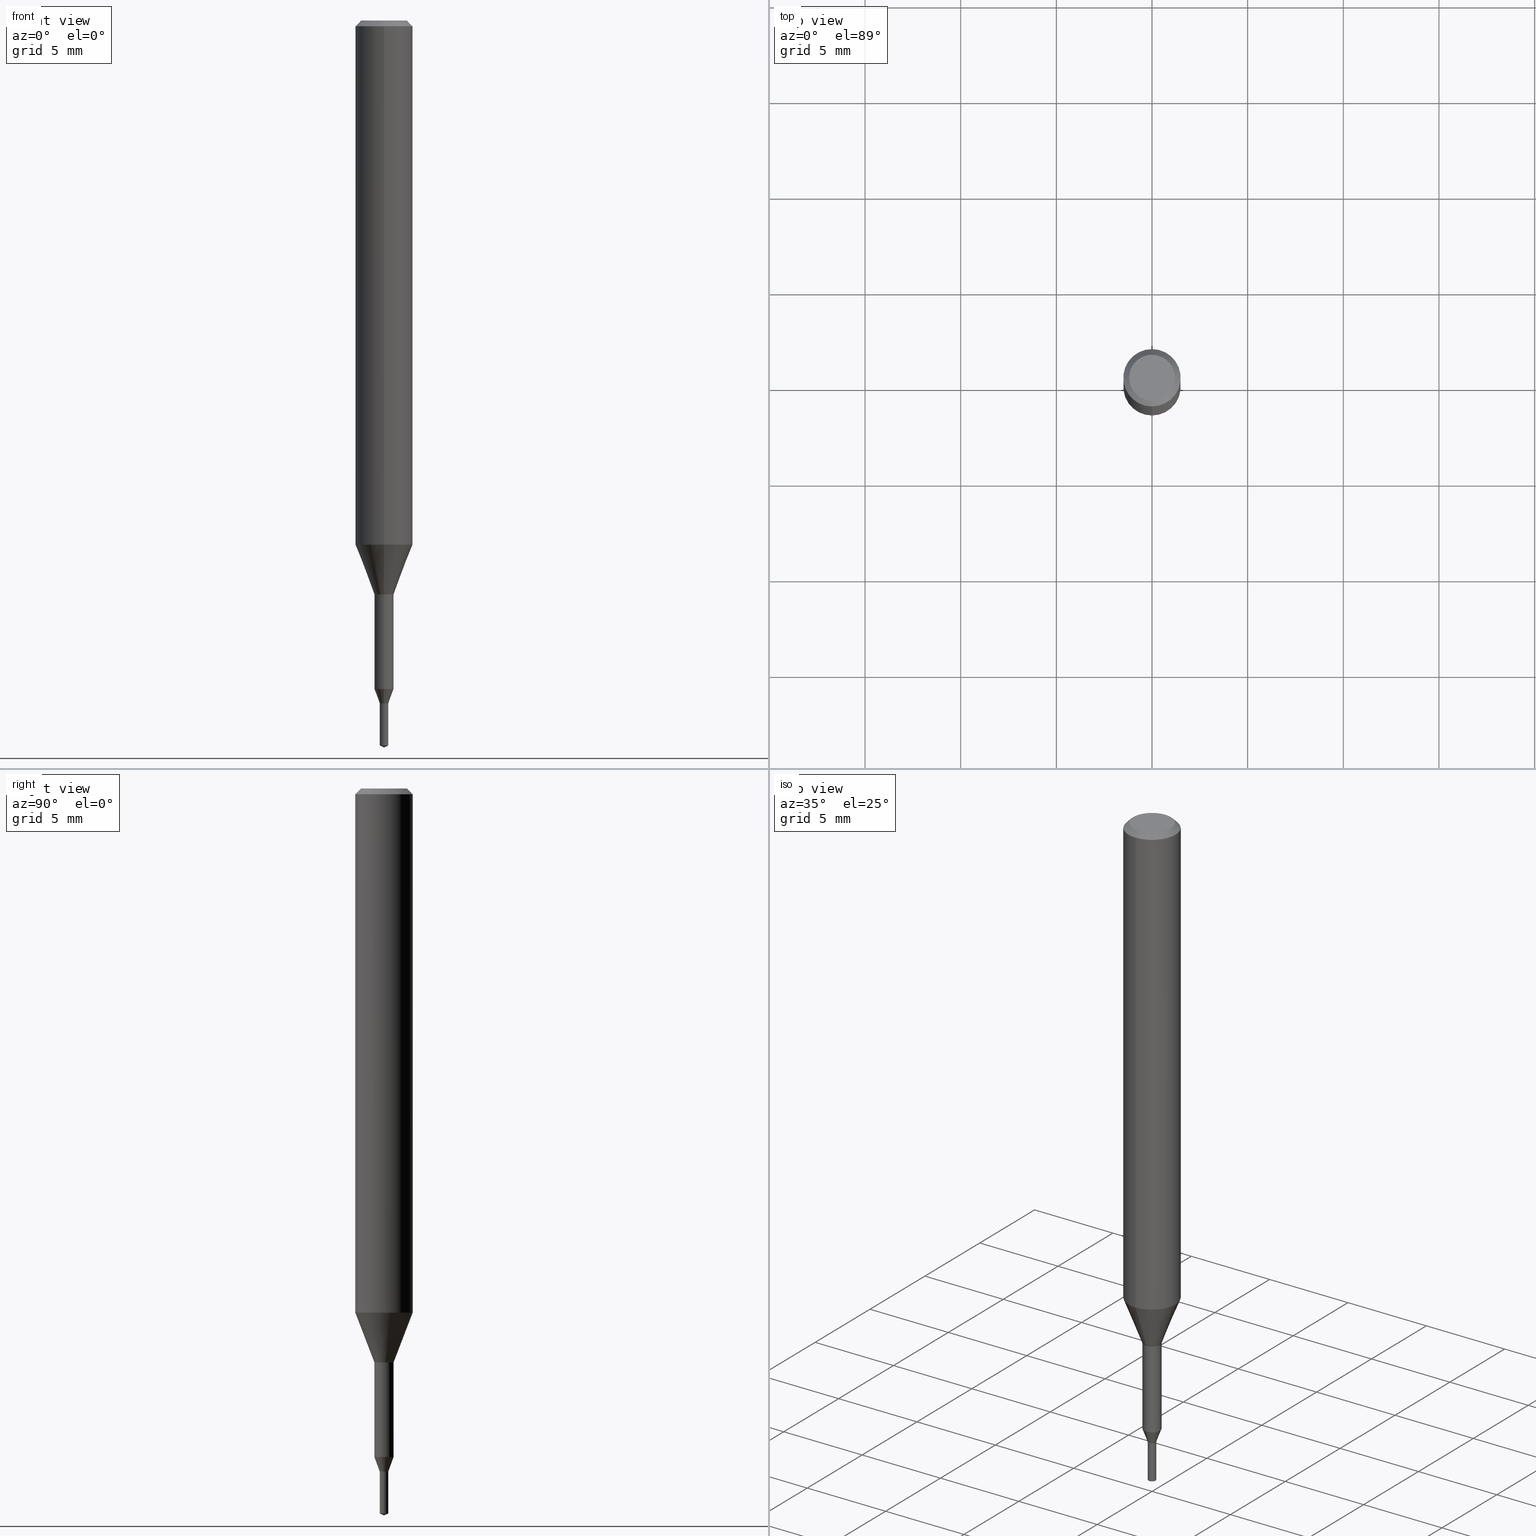
[diagram: canonical four-view strip — front | top / right | iso, engineering-drawing reading convention]
A machine part, canonical four-view strip (front | top / right | iso — engineering-drawing reading convention). The complete STEP part file that produces these views, byte-faithful:
ISO-10303-21;
HEADER;
FILE_DESCRIPTION(('no description'),'unknown implementation level');
FILE_NAME('UTDSX2045-023-Huellk.stp','  ',('CIMSOURCE GmbH'),('CADClick - KiM GmbH - www.kimweb.de'),'unknown preprocess','ACIS','unknown authorization');
FILE_SCHEMA(('automotive_design'));
ENDSEC;
DATA;
#1=MECHANICAL_DESIGN_GEOMETRIC_PRESENTATION_REPRESENTATION(' ',(#14,#15,#16,#17,#18,#19,#20,#21,#22,#23,#24,#25,#26,#27,#28,#29,#30,#31,#32,#33,#34,#35,#36,#37,#38,#39,#40,#41,#42,#43,#44,#45,#46,#47,#48,#49,#50,#51,#52,#53,#54,#55,#56,#57,#58,#59,#60,#61,#62,#63,#64,#65,#66,#67,#68,#69,#70,#71,#72,#73,#74,#75,#76,#77,#78,#79,#80,#81,#82,#83,#84,#85,#86,#87,#88,#89,#90,#91,#92),#10);
#2=PRODUCT_DEFINITION_CONTEXT('',#93,'design');
#3=APPLICATION_PROTOCOL_DEFINITION('INTERNATIONAL STANDARD','automotive_design',1994,#93);
#4=PRODUCT_CATEGORY_RELATIONSHIP('NONE','NONE',#94,#95);
#5=SHAPE_DEFINITION_REPRESENTATION(#96,#97);
#6=PRODUCT_DEFINITION_CONTEXT('',#98,'design');
#7=APPLICATION_PROTOCOL_DEFINITION('INTERNATIONAL STANDARD','automotive_design',1994,#98);
#8=PRODUCT_CATEGORY_RELATIONSHIP('NONE','NONE',#99,#100);
#9=SHAPE_DEFINITION_REPRESENTATION(#101,#102);
#10= (GEOMETRIC_REPRESENTATION_CONTEXT(3)GLOBAL_UNCERTAINTY_ASSIGNED_CONTEXT((#105))GLOBAL_UNIT_ASSIGNED_CONTEXT((#107,#108,#109))REPRESENTATION_CONTEXT('NONE','WORKSPACE'));
#14=STYLED_ITEM('',(#111),#112);
#15=STYLED_ITEM('',(#113),#114);
#16=STYLED_ITEM('',(#115),#116);
#17=STYLED_ITEM('',(#117),#118);
#18=STYLED_ITEM('',(#119),#120);
#19=STYLED_ITEM('',(#121),#122);
#20=STYLED_ITEM('',(#123),#124);
#21=STYLED_ITEM('',(#125),#126);
#22=STYLED_ITEM('',(#127),#128);
#23=STYLED_ITEM('',(#129),#130);
#24=STYLED_ITEM('',(#131),#132);
#25=STYLED_ITEM('',(#133),#134);
#26=STYLED_ITEM('',(#135),#136);
#27=STYLED_ITEM('',(#137),#138);
#28=STYLED_ITEM('',(#139),#140);
#29=STYLED_ITEM('',(#141),#142);
#30=STYLED_ITEM('',(#143),#144);
#31=STYLED_ITEM('',(#145),#146);
#32=STYLED_ITEM('',(#147),#148);
#33=STYLED_ITEM('',(#149),#150);
#34=STYLED_ITEM('',(#151),#152);
#35=STYLED_ITEM('',(#153),#154);
#36=STYLED_ITEM('',(#155),#156);
#37=STYLED_ITEM('',(#157),#158);
#38=STYLED_ITEM('',(#159),#160);
#39=STYLED_ITEM('',(#161),#162);
#40=STYLED_ITEM('',(#163),#164);
#41=STYLED_ITEM('',(#165),#166);
#42=STYLED_ITEM('',(#167),#168);
#43=STYLED_ITEM('',(#169),#170);
#44=STYLED_ITEM('',(#171),#172);
#45=STYLED_ITEM('',(#173),#174);
#46=STYLED_ITEM('',(#175),#176);
#47=STYLED_ITEM('',(#177),#178);
#48=STYLED_ITEM('',(#179),#180);
#49=STYLED_ITEM('',(#181),#182);
#50=STYLED_ITEM('',(#183),#184);
#51=STYLED_ITEM('',(#185),#186);
#52=STYLED_ITEM('',(#187),#188);
#53=STYLED_ITEM('',(#189),#190);
#54=STYLED_ITEM('',(#191),#192);
#55=STYLED_ITEM('',(#193),#194);
#56=STYLED_ITEM('',(#195),#196);
#57=STYLED_ITEM('',(#197),#198);
#58=STYLED_ITEM('',(#199),#200);
#59=STYLED_ITEM('',(#201),#202);
#60=STYLED_ITEM('',(#203),#204);
#61=STYLED_ITEM('',(#205),#206);
#62=STYLED_ITEM('',(#207),#208);
#63=STYLED_ITEM('',(#209),#210);
#64=STYLED_ITEM('',(#211),#212);
#65=STYLED_ITEM('',(#213),#214);
#66=STYLED_ITEM('',(#215),#216);
#67=STYLED_ITEM('',(#217),#218);
#68=STYLED_ITEM('',(#219),#220);
#69=STYLED_ITEM('',(#221),#222);
#70=STYLED_ITEM('',(#223),#224);
#71=STYLED_ITEM('',(#225),#226);
#72=STYLED_ITEM('',(#227),#228);
#73=STYLED_ITEM('',(#229),#230);
#74=STYLED_ITEM('',(#231),#232);
#75=STYLED_ITEM('',(#233),#234);
#76=STYLED_ITEM('',(#235),#236);
#77=STYLED_ITEM('',(#237),#238);
#78=STYLED_ITEM('',(#239),#240);
#79=STYLED_ITEM('',(#241),#242);
#80=STYLED_ITEM('',(#243),#244);
#81=STYLED_ITEM('',(#245),#246);
#82=STYLED_ITEM('',(#247),#248);
#83=STYLED_ITEM('',(#249),#250);
#84=STYLED_ITEM('',(#251),#252);
#85=STYLED_ITEM('',(#253),#254);
#86=STYLED_ITEM('',(#255),#256);
#87=STYLED_ITEM('',(#257),#258);
#88=STYLED_ITEM('',(#259),#260);
#89=STYLED_ITEM('',(#261),#262);
#90=STYLED_ITEM('',(#263),#264);
#91=STYLED_ITEM('',(#265),#266);
#92=STYLED_ITEM('',(#267),#268);
#93=APPLICATION_CONTEXT(' ');
#94=PRODUCT_CATEGORY('part','NONE');
#95=PRODUCT_RELATED_PRODUCT_CATEGORY('detail',' ',(#269));
#96=PRODUCT_DEFINITION_SHAPE('NONE','NONE',#270);
#97=ADVANCED_BREP_SHAPE_REPRESENTATION('1',(#192,#271),#10);
#98=APPLICATION_CONTEXT(' ');
#99=PRODUCT_CATEGORY('part','NONE');
#100=PRODUCT_RELATED_PRODUCT_CATEGORY('detail',' ',(#272));
#101=PRODUCT_DEFINITION_SHAPE('NONE','NONE',#273);
#102=ADVANCED_BREP_SHAPE_REPRESENTATION('2',(#188,#274),#10);
#105=UNCERTAINTY_MEASURE_WITH_UNIT(LENGTH_MEASURE(1.0E-006),#107,'','');
#107= (CONVERSION_BASED_UNIT('MILLIMETRE',#277)LENGTH_UNIT()NAMED_UNIT(#280));
#108= (NAMED_UNIT(#282)PLANE_ANGLE_UNIT()SI_UNIT($,.RADIAN.));
#109= (NAMED_UNIT(#282)SOLID_ANGLE_UNIT()SI_UNIT($,.STERADIAN.));
#111=PRESENTATION_STYLE_ASSIGNMENT((#288));
#112=EDGE_CURVE('',#238,#256,#289,.T.);
#113=PRESENTATION_STYLE_ASSIGNMENT((#290));
#114=VERTEX_POINT('',#291);
#115=PRESENTATION_STYLE_ASSIGNMENT((#292));
#116=ADVANCED_FACE('',(#293),#294,.T.);
#117=PRESENTATION_STYLE_ASSIGNMENT((#295));
#118=VERTEX_POINT('',#296);
#119=PRESENTATION_STYLE_ASSIGNMENT((#297));
#120=EDGE_CURVE('',#176,#162,#298,.T.);
#121=PRESENTATION_STYLE_ASSIGNMENT((#299));
#122=ADVANCED_FACE('',(#300),#301,.T.);
#123=PRESENTATION_STYLE_ASSIGNMENT((#302));
#124=EDGE_CURVE('',#148,#194,#303,.T.);
#125=PRESENTATION_STYLE_ASSIGNMENT((#304));
#126=VERTEX_POINT('',#305);
#127=PRESENTATION_STYLE_ASSIGNMENT((#306));
#128=ADVANCED_FACE('',(#307),#308,.T.);
#129=PRESENTATION_STYLE_ASSIGNMENT((#309));
#130=ADVANCED_FACE('',(#310),#311,.T.);
#131=PRESENTATION_STYLE_ASSIGNMENT((#312));
#132=EDGE_CURVE('',#258,#144,#313,.T.);
#133=PRESENTATION_STYLE_ASSIGNMENT((#314));
#134=EDGE_CURVE('',#144,#258,#315,.T.);
#135=PRESENTATION_STYLE_ASSIGNMENT((#316));
#136=VERTEX_POINT('',#317);
#137=PRESENTATION_STYLE_ASSIGNMENT((#318));
#138=EDGE_CURVE('',#136,#142,#319,.T.);
#139=PRESENTATION_STYLE_ASSIGNMENT((#320));
#140=VERTEX_POINT('',#321);
#141=PRESENTATION_STYLE_ASSIGNMENT((#322));
#142=VERTEX_POINT('',#323);
#143=PRESENTATION_STYLE_ASSIGNMENT((#324));
#144=VERTEX_POINT('',#325);
#145=PRESENTATION_STYLE_ASSIGNMENT((#326));
#146=EDGE_CURVE('',#194,#140,#327,.T.);
#147=PRESENTATION_STYLE_ASSIGNMENT((#328));
#148=VERTEX_POINT('',#329);
#149=PRESENTATION_STYLE_ASSIGNMENT((#330));
#150=EDGE_CURVE('',#184,#176,#331,.T.);
#151=PRESENTATION_STYLE_ASSIGNMENT((#332));
#152=ADVANCED_FACE('',(#333),#334,.T.);
#153=PRESENTATION_STYLE_ASSIGNMENT((#335));
#154=ADVANCED_FACE('',(#336),#337,.T.);
#155=PRESENTATION_STYLE_ASSIGNMENT((#338));
#156=EDGE_CURVE('',#258,#232,#339,.T.);
#157=PRESENTATION_STYLE_ASSIGNMENT((#340));
#158=ADVANCED_FACE('',(#341),#342,.T.);
#159=PRESENTATION_STYLE_ASSIGNMENT((#343));
#160=EDGE_CURVE('',#142,#222,#344,.T.);
#161=PRESENTATION_STYLE_ASSIGNMENT((#345));
#162=VERTEX_POINT('',#346);
#163=PRESENTATION_STYLE_ASSIGNMENT((#347));
#164=ADVANCED_FACE('',(#348,#349),#350,.T.);
#165=PRESENTATION_STYLE_ASSIGNMENT((#351));
#166=EDGE_CURVE('',#162,#176,#352,.T.);
#167=PRESENTATION_STYLE_ASSIGNMENT((#353));
#168=EDGE_CURVE('',#234,#126,#354,.T.);
#169=PRESENTATION_STYLE_ASSIGNMENT((#355));
#170=EDGE_CURVE('',#184,#114,#356,.T.);
#171=PRESENTATION_STYLE_ASSIGNMENT((#357));
#172=EDGE_CURVE('',#114,#184,#358,.T.);
#173=PRESENTATION_STYLE_ASSIGNMENT((#359));
#174=EDGE_CURVE('',#126,#234,#360,.T.);
#175=PRESENTATION_STYLE_ASSIGNMENT((#361));
#176=VERTEX_POINT('',#362);
#177=PRESENTATION_STYLE_ASSIGNMENT((#363));
#178=EDGE_CURVE('',#162,#114,#364,.T.);
#179=PRESENTATION_STYLE_ASSIGNMENT((#365));
#180=EDGE_CURVE('',#140,#246,#366,.T.);
#181=PRESENTATION_STYLE_ASSIGNMENT((#367));
#182=EDGE_CURVE('',#246,#238,#368,.T.);
#183=PRESENTATION_STYLE_ASSIGNMENT((#369));
#184=VERTEX_POINT('',#370);
#185=PRESENTATION_STYLE_ASSIGNMENT((#371));
#186=EDGE_CURVE('',#136,#212,#372,.T.);
#187=PRESENTATION_STYLE_ASSIGNMENT((#373));
#188=MANIFOLD_SOLID_BREP('2',#374);
#189=PRESENTATION_STYLE_ASSIGNMENT((#375));
#190=ADVANCED_FACE('',(#376),#377,.T.);
#191=PRESENTATION_STYLE_ASSIGNMENT((#378));
#192=MANIFOLD_SOLID_BREP('1',#379);
#193=PRESENTATION_STYLE_ASSIGNMENT((#380));
#194=VERTEX_POINT('',#381);
#195=PRESENTATION_STYLE_ASSIGNMENT((#382));
#196=ADVANCED_FACE('',(#383),#384,.T.);
#197=PRESENTATION_STYLE_ASSIGNMENT((#385));
#198=ADVANCED_FACE('',(#386),#387,.T.);
#199=PRESENTATION_STYLE_ASSIGNMENT((#388));
#200=EDGE_CURVE('',#246,#140,#389,.T.);
#201=PRESENTATION_STYLE_ASSIGNMENT((#390));
#202=VERTEX_POINT('',#391);
#203=PRESENTATION_STYLE_ASSIGNMENT((#392));
#204=ADVANCED_FACE('',(#393),#394,.T.);
#205=PRESENTATION_STYLE_ASSIGNMENT((#395));
#206=EDGE_CURVE('',#148,#256,#396,.T.);
#207=PRESENTATION_STYLE_ASSIGNMENT((#397));
#208=EDGE_CURVE('',#222,#142,#398,.T.);
#209=PRESENTATION_STYLE_ASSIGNMENT((#399));
#210=ADVANCED_FACE('',(#400),#401,.T.);
#211=PRESENTATION_STYLE_ASSIGNMENT((#402));
#212=VERTEX_POINT('',#403);
#213=PRESENTATION_STYLE_ASSIGNMENT((#404));
#214=ADVANCED_FACE('',(#405),#406,.T.);
#215=PRESENTATION_STYLE_ASSIGNMENT((#407));
#216=EDGE_CURVE('',#118,#126,#408,.T.);
#217=PRESENTATION_STYLE_ASSIGNMENT((#409));
#218=EDGE_CURVE('',#202,#118,#410,.T.);
#219=PRESENTATION_STYLE_ASSIGNMENT((#411));
#220=EDGE_CURVE('',#194,#238,#412,.T.);
#221=PRESENTATION_STYLE_ASSIGNMENT((#413));
#222=VERTEX_POINT('',#414);
#223=PRESENTATION_STYLE_ASSIGNMENT((#415));
#224=EDGE_CURVE('',#232,#144,#416,.T.);
#225=PRESENTATION_STYLE_ASSIGNMENT((#417));
#226=ADVANCED_FACE('',(#418),#419,.T.);
#227=PRESENTATION_STYLE_ASSIGNMENT((#420));
#228=EDGE_CURVE('',#202,#258,#421,.T.);
#229=PRESENTATION_STYLE_ASSIGNMENT((#422));
#230=ADVANCED_FACE('',(#423),#424,.T.);
#231=PRESENTATION_STYLE_ASSIGNMENT((#425));
#232=VERTEX_POINT('',#426);
#233=PRESENTATION_STYLE_ASSIGNMENT((#427));
#234=VERTEX_POINT('',#428);
#235=PRESENTATION_STYLE_ASSIGNMENT((#429));
#236=EDGE_CURVE('',#238,#194,#430,.T.);
#237=PRESENTATION_STYLE_ASSIGNMENT((#431));
#238=VERTEX_POINT('',#432);
#239=PRESENTATION_STYLE_ASSIGNMENT((#433));
#240=EDGE_CURVE('',#114,#136,#434,.T.);
#241=PRESENTATION_STYLE_ASSIGNMENT((#435));
#242=ADVANCED_FACE('',(#436),#437,.T.);
#243=PRESENTATION_STYLE_ASSIGNMENT((#438));
#244=EDGE_CURVE('',#222,#212,#439,.T.);
#245=PRESENTATION_STYLE_ASSIGNMENT((#440));
#246=VERTEX_POINT('',#441);
#247=PRESENTATION_STYLE_ASSIGNMENT((#442));
#248=EDGE_CURVE('',#144,#118,#443,.T.);
#249=PRESENTATION_STYLE_ASSIGNMENT((#444));
#250=EDGE_CURVE('',#234,#202,#445,.T.);
#251=PRESENTATION_STYLE_ASSIGNMENT((#446));
#252=EDGE_CURVE('',#118,#202,#447,.T.);
#253=PRESENTATION_STYLE_ASSIGNMENT((#448));
#254=ADVANCED_FACE('',(#449),#450,.T.);
#255=PRESENTATION_STYLE_ASSIGNMENT((#451));
#256=VERTEX_POINT('',#452);
#257=PRESENTATION_STYLE_ASSIGNMENT((#453));
#258=VERTEX_POINT('',#454);
#259=PRESENTATION_STYLE_ASSIGNMENT((#455));
#260=EDGE_CURVE('',#212,#184,#456,.T.);
#261=PRESENTATION_STYLE_ASSIGNMENT((#457));
#262=ADVANCED_FACE('',(#458),#459,.T.);
#263=PRESENTATION_STYLE_ASSIGNMENT((#460));
#264=EDGE_CURVE('',#256,#148,#461,.T.);
#265=PRESENTATION_STYLE_ASSIGNMENT((#462));
#266=EDGE_CURVE('',#212,#136,#463,.T.);
#267=PRESENTATION_STYLE_ASSIGNMENT((#464));
#268=ADVANCED_FACE('',(#465),#466,.T.);
#269=PRODUCT('1','1','PART-1-DESC',(#467));
#270=PRODUCT_DEFINITION('NONE','NONE',#468,#2);
#271=AXIS2_PLACEMENT_3D('',#469,#470,#471);
#272=PRODUCT('2','2','PART-2-DESC',(#472));
#273=PRODUCT_DEFINITION('NONE','NONE',#473,#6);
#274=AXIS2_PLACEMENT_3D('',#474,#475,#476);
#277=LENGTH_MEASURE_WITH_UNIT(LENGTH_MEASURE(1.0),#477);
#280=DIMENSIONAL_EXPONENTS(1.0,0.0,0.0,0.0,0.0,0.0,0.0);
#282=DIMENSIONAL_EXPONENTS(0.0,0.0,0.0,0.0,0.0,0.0,0.0);
#288=CURVE_STYLE('',#478,POSITIVE_LENGTH_MEASURE(1.0E-006),#479);
#289=LINE('',#480,#481);
#290=POINT_STYLE(' ',#482,POSITIVE_LENGTH_MEASURE(1.0E-006),#483);
#291=CARTESIAN_POINT('',(1.83690953073357E-016,-1.5,-27.395));
#292=SURFACE_STYLE_USAGE(.BOTH.,#484);
#293=FACE_OUTER_BOUND('',#485,.T.);
#294=PLANE('',#486);
#295=POINT_STYLE(' ',#487,POSITIVE_LENGTH_MEASURE(1.0E-006),#488);
#296=CARTESIAN_POINT('',(0.225,2.75536429610035E-017,-35.7));
#297=CURVE_STYLE('',#489,POSITIVE_LENGTH_MEASURE(1.0E-006),#490);
#298=CIRCLE('',#491,0.5);
#299=SURFACE_STYLE_USAGE(.BOTH.,#492);
#300=FACE_OUTER_BOUND('',#493,.T.);
#301=CONICAL_SURFACE('',#494,0.225518187830688,1.4746040084912);
#302=CURVE_STYLE('',#495,POSITIVE_LENGTH_MEASURE(1.0E-006),#496);
#303=LINE('',#497,#498);
#304=POINT_STYLE(' ',#499,POSITIVE_LENGTH_MEASURE(1.0E-006),#500);
#305=CARTESIAN_POINT('',(0.226036375661376,2.76805581829902E-017,-35.6999));
#306=SURFACE_STYLE_USAGE(.BOTH.,#501);
#307=FACE_OUTER_BOUND('',#502,.T.);
#308=CONICAL_SURFACE('',#503,1.0,0.366530581623394);
#309=SURFACE_STYLE_USAGE(.BOTH.,#504);
#310=FACE_OUTER_BOUND('',#505,.T.);
#311=CYLINDRICAL_SURFACE('',#506,0.49995);
#312=CURVE_STYLE('',#507,POSITIVE_LENGTH_MEASURE(1.0E-006),#508);
#313=CIRCLE('',#509,0.225);
#314=CURVE_STYLE('',#510,POSITIVE_LENGTH_MEASURE(1.0E-006),#511);
#315=CIRCLE('',#512,0.225);
#316=POINT_STYLE(' ',#513,POSITIVE_LENGTH_MEASURE(1.0E-006),#514);
#317=CARTESIAN_POINT('',(1.83690953073357E-016,-1.5,-0.300000000000001));
#318=CURVE_STYLE('',#515,POSITIVE_LENGTH_MEASURE(1.0E-006),#516);
#319=LINE('',#517,#518);
#320=POINT_STYLE(' ',#519,POSITIVE_LENGTH_MEASURE(1.0E-006),#520);
#321=CARTESIAN_POINT('',(6.12241946593498E-017,-0.49995,-30.0));
#322=POINT_STYLE(' ',#521,POSITIVE_LENGTH_MEASURE(1.0E-006),#522);
#323=CARTESIAN_POINT('',(1.46952762458685E-016,-1.2,0.0));
#324=POINT_STYLE(' ',#523,POSITIVE_LENGTH_MEASURE(1.0E-006),#524);
#325=CARTESIAN_POINT('',(0.225,2.75536429610035E-017,-37.89508078));
#326=CURVE_STYLE('',#525,POSITIVE_LENGTH_MEASURE(1.0E-006),#526);
#327=LINE('',#527,#528);
#328=POINT_STYLE(' ',#529,POSITIVE_LENGTH_MEASURE(1.0E-006),#530);
#329=CARTESIAN_POINT('',(2.75580967376832E-017,-0.225036369047619,-35.6999));
#330=CURVE_STYLE('',#531,POSITIVE_LENGTH_MEASURE(1.0E-006),#532);
#331=LINE('',#533,#534);
#332=SURFACE_STYLE_USAGE(.BOTH.,#535);
#333=FACE_OUTER_BOUND('',#536,.T.);
#334=CONICAL_SURFACE('',#537,1.35,0.785398163397447);
#335=SURFACE_STYLE_USAGE(.BOTH.,#538);
#336=FACE_OUTER_BOUND('',#539,.T.);
#337=CYLINDRICAL_SURFACE('',#540,0.225);
#338=CURVE_STYLE('',#541,POSITIVE_LENGTH_MEASURE(1.0E-006),#542);
#339=LINE('',#543,#544);
#340=SURFACE_STYLE_USAGE(.BOTH.,#545);
#341=FACE_OUTER_BOUND('',#546,.T.);
#342=PLANE('',#547);
#343=CURVE_STYLE('',#548,POSITIVE_LENGTH_MEASURE(1.0E-006),#549);
#344=CIRCLE('',#550,1.2);
#345=POINT_STYLE(' ',#551,POSITIVE_LENGTH_MEASURE(1.0E-006),#552);
#346=CARTESIAN_POINT('',(6.12303176911189E-017,-0.5,-30.0));
#347=SURFACE_STYLE_USAGE(.BOTH.,#553);
#348=FACE_BOUND('',#554,.T.);
#349=FACE_OUTER_BOUND('',#555,.T.);
#350=PLANE('',#556);
#351=CURVE_STYLE('',#557,POSITIVE_LENGTH_MEASURE(1.0E-006),#558);
#352=CIRCLE('',#559,0.5);
#353=CURVE_STYLE('',#560,POSITIVE_LENGTH_MEASURE(1.0E-006),#561);
#354=CIRCLE('',#562,0.226036375661376);
#355=CURVE_STYLE('',#563,POSITIVE_LENGTH_MEASURE(1.0E-006),#564);
#356=CIRCLE('',#565,1.5);
#357=CURVE_STYLE('',#566,POSITIVE_LENGTH_MEASURE(1.0E-006),#567);
#358=CIRCLE('',#568,1.5);
#359=CURVE_STYLE('',#569,POSITIVE_LENGTH_MEASURE(1.0E-006),#570);
#360=CIRCLE('',#571,0.226036375661376);
#361=POINT_STYLE(' ',#572,POSITIVE_LENGTH_MEASURE(1.0E-006),#573);
#362=CARTESIAN_POINT('',(0.0,0.5,-30.0));
#363=CURVE_STYLE('',#574,POSITIVE_LENGTH_MEASURE(1.0E-006),#575);
#364=LINE('',#576,#577);
#365=CURVE_STYLE('',#578,POSITIVE_LENGTH_MEASURE(1.0E-006),#579);
#366=CIRCLE('',#580,0.49995);
#367=CURVE_STYLE('',#581,POSITIVE_LENGTH_MEASURE(1.0E-006),#582);
#368=LINE('',#583,#584);
#369=POINT_STYLE(' ',#585,POSITIVE_LENGTH_MEASURE(1.0E-006),#586);
#370=CARTESIAN_POINT('',(0.0,1.5,-27.395));
#371=CURVE_STYLE('',#587,POSITIVE_LENGTH_MEASURE(1.0E-006),#588);
#372=CIRCLE('',#589,1.5);
#373=SURFACE_STYLE_USAGE(.BOTH.,#590);
#374=CLOSED_SHELL('',(#242,#154,#196,#158,#122,#204,#198));
#375=SURFACE_STYLE_USAGE(.BOTH.,#591);
#376=FACE_OUTER_BOUND('',#592,.T.);
#377=CONICAL_SURFACE('',#593,0.36249318452381,0.348818795593047);
#378=SURFACE_STYLE_USAGE(.BOTH.,#594);
#379=CLOSED_SHELL('',(#210,#130,#128,#268,#226,#214,#152,#262,#230,#164,#254,#190,#116));
#380=POINT_STYLE(' ',#595,POSITIVE_LENGTH_MEASURE(1.0E-006),#596);
#381=CARTESIAN_POINT('',(6.12241946593498E-017,-0.49995,-34.944));
#382=SURFACE_STYLE_USAGE(.BOTH.,#597);
#383=FACE_OUTER_BOUND('',#598,.T.);
#384=CONICAL_SURFACE('',#599,0.225518187830688,1.4746040084912);
#385=SURFACE_STYLE_USAGE(.BOTH.,#600);
#386=FACE_OUTER_BOUND('',#601,.T.);
#387=CONICAL_SURFACE('',#602,0.1125,1.13446402505808);
#388=CURVE_STYLE('',#603,POSITIVE_LENGTH_MEASURE(1.0E-006),#604);
#389=CIRCLE('',#605,0.49995);
#390=POINT_STYLE(' ',#606,POSITIVE_LENGTH_MEASURE(1.0E-006),#607);
#391=CARTESIAN_POINT('',(-0.225,0.0,-35.7));
#392=SURFACE_STYLE_USAGE(.BOTH.,#608);
#393=FACE_OUTER_BOUND('',#609,.T.);
#394=CYLINDRICAL_SURFACE('',#610,0.225);
#395=CURVE_STYLE('',#611,POSITIVE_LENGTH_MEASURE(1.0E-006),#612);
#396=CIRCLE('',#613,0.225036369047619);
#397=CURVE_STYLE('',#614,POSITIVE_LENGTH_MEASURE(1.0E-006),#615);
#398=CIRCLE('',#616,1.2);
#399=SURFACE_STYLE_USAGE(.BOTH.,#617);
#400=FACE_OUTER_BOUND('',#618,.T.);
#401=CONICAL_SURFACE('',#619,0.36249318452381,0.348818795593047);
#402=POINT_STYLE(' ',#620,POSITIVE_LENGTH_MEASURE(1.0E-006),#621);
#403=CARTESIAN_POINT('',(0.0,1.5,-0.300000000000001));
#404=SURFACE_STYLE_USAGE(.BOTH.,#622);
#405=FACE_OUTER_BOUND('',#623,.T.);
#406=PLANE('',#624);
#407=CURVE_STYLE('',#625,POSITIVE_LENGTH_MEASURE(1.0E-006),#626);
#408=LINE('',#627,#628);
#409=CURVE_STYLE('',#629,POSITIVE_LENGTH_MEASURE(1.0E-006),#630);
#410=CIRCLE('',#631,0.225);
#411=CURVE_STYLE('',#632,POSITIVE_LENGTH_MEASURE(1.0E-006),#633);
#412=CIRCLE('',#634,0.49995);
#413=POINT_STYLE(' ',#635,POSITIVE_LENGTH_MEASURE(1.0E-006),#636);
#414=CARTESIAN_POINT('',(0.0,1.2,0.0));
#415=CURVE_STYLE('',#637,POSITIVE_LENGTH_MEASURE(1.0E-006),#638);
#416=LINE('',#639,#640);
#417=SURFACE_STYLE_USAGE(.BOTH.,#641);
#418=FACE_OUTER_BOUND('',#642,.T.);
#419=CONICAL_SURFACE('',#643,1.35,0.785398163397447);
#420=CURVE_STYLE('',#644,POSITIVE_LENGTH_MEASURE(1.0E-006),#645);
#421=LINE('',#646,#647);
#422=SURFACE_STYLE_USAGE(.BOTH.,#648);
#423=FACE_OUTER_BOUND('',#649,.T.);
#424=CONICAL_SURFACE('',#650,1.0,0.366530581623394);
#425=POINT_STYLE(' ',#651,POSITIVE_LENGTH_MEASURE(1.0E-006),#652);
#426=CARTESIAN_POINT('',(0.0,0.0,-38.0));
#427=POINT_STYLE(' ',#653,POSITIVE_LENGTH_MEASURE(1.0E-006),#654);
#428=CARTESIAN_POINT('',(-0.226036375661376,0.0,-35.6999));
#429=CURVE_STYLE('',#655,POSITIVE_LENGTH_MEASURE(1.0E-006),#656);
#430=CIRCLE('',#657,0.49995);
#431=POINT_STYLE(' ',#658,POSITIVE_LENGTH_MEASURE(1.0E-006),#659);
#432=CARTESIAN_POINT('',(0.0,0.49995,-34.944));
#433=CURVE_STYLE('',#660,POSITIVE_LENGTH_MEASURE(1.0E-006),#661);
#434=LINE('',#662,#663);
#435=SURFACE_STYLE_USAGE(.BOTH.,#664);
#436=FACE_OUTER_BOUND('',#665,.T.);
#437=CONICAL_SURFACE('',#666,0.1125,1.13446402505808);
#438=CURVE_STYLE('',#667,POSITIVE_LENGTH_MEASURE(1.0E-006),#668);
#439=LINE('',#669,#670);
#440=POINT_STYLE(' ',#671,POSITIVE_LENGTH_MEASURE(1.0E-006),#672);
#441=CARTESIAN_POINT('',(0.0,0.49995,-30.0));
#442=CURVE_STYLE('',#673,POSITIVE_LENGTH_MEASURE(1.0E-006),#674);
#443=LINE('',#675,#676);
#444=CURVE_STYLE('',#677,POSITIVE_LENGTH_MEASURE(1.0E-006),#678);
#445=LINE('',#679,#680);
#446=CURVE_STYLE('',#681,POSITIVE_LENGTH_MEASURE(1.0E-006),#682);
#447=CIRCLE('',#683,0.225);
#448=SURFACE_STYLE_USAGE(.BOTH.,#684);
#449=FACE_OUTER_BOUND('',#685,.T.);
#450=CYLINDRICAL_SURFACE('',#686,0.49995);
#451=POINT_STYLE(' ',#687,POSITIVE_LENGTH_MEASURE(1.0E-006),#688);
#452=CARTESIAN_POINT('',(0.0,0.225036369047619,-35.6999));
#453=POINT_STYLE(' ',#689,POSITIVE_LENGTH_MEASURE(1.0E-006),#690);
#454=CARTESIAN_POINT('',(-0.225,0.0,-37.89508078));
#455=CURVE_STYLE('',#691,POSITIVE_LENGTH_MEASURE(1.0E-006),#692);
#456=LINE('',#693,#694);
#457=SURFACE_STYLE_USAGE(.BOTH.,#695);
#458=FACE_OUTER_BOUND('',#696,.T.);
#459=CYLINDRICAL_SURFACE('',#697,1.5);
#460=CURVE_STYLE('',#698,POSITIVE_LENGTH_MEASURE(1.0E-006),#699);
#461=CIRCLE('',#700,0.225036369047619);
#462=CURVE_STYLE('',#701,POSITIVE_LENGTH_MEASURE(1.0E-006),#702);
#463=CIRCLE('',#703,1.5);
#464=SURFACE_STYLE_USAGE(.BOTH.,#704);
#465=FACE_OUTER_BOUND('',#705,.T.);
#466=CYLINDRICAL_SURFACE('',#706,1.5);
#467=PRODUCT_CONTEXT('',#93,'mechanical');
#468=PRODUCT_DEFINITION_FORMATION_WITH_SPECIFIED_SOURCE(' ','NONE',#269,.NOT_KNOWN.);
#469=CARTESIAN_POINT('',(0.0,0.0,0.0));
#470=DIRECTION('',(0.0,0.0,1.0));
#471=DIRECTION('',(1.0,0.0,0.0));
#472=PRODUCT_CONTEXT('',#98,'mechanical');
#473=PRODUCT_DEFINITION_FORMATION_WITH_SPECIFIED_SOURCE(' ','NONE',#272,.NOT_KNOWN.);
#474=CARTESIAN_POINT('',(0.0,0.0,0.0));
#475=DIRECTION('',(0.0,0.0,1.0));
#476=DIRECTION('',(1.0,0.0,0.0));
#477= (NAMED_UNIT(#280)LENGTH_UNIT()SI_UNIT(.MILLI.,.METRE.));
#478=DRAUGHTING_PRE_DEFINED_CURVE_FONT('continuous');
#479=COLOUR_RGB('',0.498039215803146,0.498039215803146,0.498039215803146);
#480=CARTESIAN_POINT('',(-4.43911456985165E-017,0.36249318452381,-35.32195));
#481=VECTOR('',#708,1.0);
#482=PRE_DEFINED_MARKER('');
#483=COLOUR_RGB('',0.498039215803146,0.498039215803146,0.498039215803146);
#484=SURFACE_SIDE_STYLE('',(#709));
#485=EDGE_LOOP('',(#710,#711));
#486=AXIS2_PLACEMENT_3D('',#712,#713,#714);
#487=PRE_DEFINED_MARKER('');
#488=COLOUR_RGB('',0.800000011920929,0.800000011920929,0.800000011920929);
#489=DRAUGHTING_PRE_DEFINED_CURVE_FONT('continuous');
#490=COLOUR_RGB('',0.498039215803146,0.498039215803146,0.498039215803146);
#491=AXIS2_PLACEMENT_3D('',#715,#716,#717);
#492=SURFACE_SIDE_STYLE('',(#718));
#493=EDGE_LOOP('',(#719,#720,#721,#722));
#494=AXIS2_PLACEMENT_3D('',#723,#724,#725);
#495=DRAUGHTING_PRE_DEFINED_CURVE_FONT('continuous');
#496=COLOUR_RGB('',0.498039215803146,0.498039215803146,0.498039215803146);
#497=CARTESIAN_POINT('',(4.43911456985165E-017,-0.36249318452381,-35.32195));
#498=VECTOR('',#726,1.0);
#499=PRE_DEFINED_MARKER('');
#500=COLOUR_RGB('',0.800000011920929,0.800000011920929,0.800000011920929);
#501=SURFACE_SIDE_STYLE('',(#727));
#502=EDGE_LOOP('',(#728,#729,#730,#731));
#503=AXIS2_PLACEMENT_3D('',#732,#733,#734);
#504=SURFACE_SIDE_STYLE('',(#735));
#505=EDGE_LOOP('',(#736,#737,#738,#739));
#506=AXIS2_PLACEMENT_3D('',#740,#741,#742);
#507=DRAUGHTING_PRE_DEFINED_CURVE_FONT('continuous');
#508=COLOUR_RGB('',0.800000011920929,0.800000011920929,0.800000011920929);
#509=AXIS2_PLACEMENT_3D('',#743,#744,#745);
#510=DRAUGHTING_PRE_DEFINED_CURVE_FONT('continuous');
#511=COLOUR_RGB('',0.800000011920929,0.800000011920929,0.800000011920929);
#512=AXIS2_PLACEMENT_3D('',#746,#747,#748);
#513=PRE_DEFINED_MARKER('');
#514=COLOUR_RGB('',0.498039215803146,0.498039215803146,0.498039215803146);
#515=DRAUGHTING_PRE_DEFINED_CURVE_FONT('continuous');
#516=COLOUR_RGB('',0.498039215803146,0.498039215803146,0.498039215803146);
#517=CARTESIAN_POINT('',(1.65321857766021E-016,-1.35,-0.150000000000002));
#518=VECTOR('',#749,1.0);
#519=PRE_DEFINED_MARKER('');
#520=COLOUR_RGB('',0.498039215803146,0.498039215803146,0.498039215803146);
#521=PRE_DEFINED_MARKER('');
#522=COLOUR_RGB('',0.498039215803146,0.498039215803146,0.498039215803146);
#523=PRE_DEFINED_MARKER('');
#524=COLOUR_RGB('',0.800000011920929,0.800000011920929,0.800000011920929);
#525=DRAUGHTING_PRE_DEFINED_CURVE_FONT('continuous');
#526=COLOUR_RGB('',0.498039215803146,0.498039215803146,0.498039215803146);
#527=CARTESIAN_POINT('',(6.12241946593498E-017,-0.49995,-32.472));
#528=VECTOR('',#750,1.0);
#529=PRE_DEFINED_MARKER('');
#530=COLOUR_RGB('',0.498039215803146,0.498039215803146,0.498039215803146);
#531=DRAUGHTING_PRE_DEFINED_CURVE_FONT('continuous');
#532=COLOUR_RGB('',0.498039215803146,0.498039215803146,0.498039215803146);
#533=CARTESIAN_POINT('',(-1.22460635382238E-016,1.0,-28.6975));
#534=VECTOR('',#751,1.0);
#535=SURFACE_SIDE_STYLE('',(#752));
#536=EDGE_LOOP('',(#753,#754,#755,#756));
#537=AXIS2_PLACEMENT_3D('',#757,#758,#759);
#538=SURFACE_SIDE_STYLE('',(#760));
#539=EDGE_LOOP('',(#761,#762,#763,#764));
#540=AXIS2_PLACEMENT_3D('',#765,#766,#767);
#541=DRAUGHTING_PRE_DEFINED_CURVE_FONT('continuous');
#542=COLOUR_RGB('',0.800000011920929,0.800000011920929,0.800000011920929);
#543=CARTESIAN_POINT('',(-0.1125,-1.37768214805017E-017,-37.94754039));
#544=VECTOR('',#768,1.0);
#545=SURFACE_SIDE_STYLE('',(#769));
#546=EDGE_LOOP('',(#770,#771));
#547=AXIS2_PLACEMENT_3D('',#772,#773,#774);
#548=DRAUGHTING_PRE_DEFINED_CURVE_FONT('continuous');
#549=COLOUR_RGB('',0.498039215803146,0.498039215803146,0.498039215803146);
#550=AXIS2_PLACEMENT_3D('',#775,#776,#777);
#551=PRE_DEFINED_MARKER('');
#552=COLOUR_RGB('',0.498039215803146,0.498039215803146,0.498039215803146);
#553=SURFACE_SIDE_STYLE('',(#778));
#554=EDGE_LOOP('',(#779,#780));
#555=EDGE_LOOP('',(#781,#782));
#556=AXIS2_PLACEMENT_3D('',#783,#784,#785);
#557=DRAUGHTING_PRE_DEFINED_CURVE_FONT('continuous');
#558=COLOUR_RGB('',0.498039215803146,0.498039215803146,0.498039215803146);
#559=AXIS2_PLACEMENT_3D('',#786,#787,#788);
#560=DRAUGHTING_PRE_DEFINED_CURVE_FONT('continuous');
#561=COLOUR_RGB('',0.800000011920929,0.800000011920929,0.800000011920929);
#562=AXIS2_PLACEMENT_3D('',#789,#790,#791);
#563=DRAUGHTING_PRE_DEFINED_CURVE_FONT('continuous');
#564=COLOUR_RGB('',0.498039215803146,0.498039215803146,0.498039215803146);
#565=AXIS2_PLACEMENT_3D('',#792,#793,#794);
#566=DRAUGHTING_PRE_DEFINED_CURVE_FONT('continuous');
#567=COLOUR_RGB('',0.498039215803146,0.498039215803146,0.498039215803146);
#568=AXIS2_PLACEMENT_3D('',#795,#796,#797);
#569=DRAUGHTING_PRE_DEFINED_CURVE_FONT('continuous');
#570=COLOUR_RGB('',0.800000011920929,0.800000011920929,0.800000011920929);
#571=AXIS2_PLACEMENT_3D('',#798,#799,#800);
#572=PRE_DEFINED_MARKER('');
#573=COLOUR_RGB('',0.498039215803146,0.498039215803146,0.498039215803146);
#574=DRAUGHTING_PRE_DEFINED_CURVE_FONT('continuous');
#575=COLOUR_RGB('',0.498039215803146,0.498039215803146,0.498039215803146);
#576=CARTESIAN_POINT('',(1.22460635382238E-016,-1.0,-28.6975));
#577=VECTOR('',#801,1.0);
#578=DRAUGHTING_PRE_DEFINED_CURVE_FONT('continuous');
#579=COLOUR_RGB('',0.498039215803146,0.498039215803146,0.498039215803146);
#580=AXIS2_PLACEMENT_3D('',#802,#803,#804);
#581=DRAUGHTING_PRE_DEFINED_CURVE_FONT('continuous');
#582=COLOUR_RGB('',0.498039215803146,0.498039215803146,0.498039215803146);
#583=CARTESIAN_POINT('',(-6.12241946593498E-017,0.49995,-32.472));
#584=VECTOR('',#805,1.0);
#585=PRE_DEFINED_MARKER('');
#586=COLOUR_RGB('',0.498039215803146,0.498039215803146,0.498039215803146);
#587=DRAUGHTING_PRE_DEFINED_CURVE_FONT('continuous');
#588=COLOUR_RGB('',0.498039215803146,0.498039215803146,0.498039215803146);
#589=AXIS2_PLACEMENT_3D('',#806,#807,#808);
#590=SURFACE_SIDE_STYLE('',(#809));
#591=SURFACE_SIDE_STYLE('',(#810));
#592=EDGE_LOOP('',(#811,#812,#813,#814));
#593=AXIS2_PLACEMENT_3D('',#815,#816,#817);
#594=SURFACE_SIDE_STYLE('',(#818));
#595=PRE_DEFINED_MARKER('');
#596=COLOUR_RGB('',0.498039215803146,0.498039215803146,0.498039215803146);
#597=SURFACE_SIDE_STYLE('',(#819));
#598=EDGE_LOOP('',(#820,#821,#822,#823));
#599=AXIS2_PLACEMENT_3D('',#824,#825,#826);
#600=SURFACE_SIDE_STYLE('',(#827));
#601=EDGE_LOOP('',(#828,#829,#830));
#602=AXIS2_PLACEMENT_3D('',#831,#832,#833);
#603=DRAUGHTING_PRE_DEFINED_CURVE_FONT('continuous');
#604=COLOUR_RGB('',0.498039215803146,0.498039215803146,0.498039215803146);
#605=AXIS2_PLACEMENT_3D('',#834,#835,#836);
#606=PRE_DEFINED_MARKER('');
#607=COLOUR_RGB('',0.800000011920929,0.800000011920929,0.800000011920929);
#608=SURFACE_SIDE_STYLE('',(#837));
#609=EDGE_LOOP('',(#838,#839,#840,#841));
#610=AXIS2_PLACEMENT_3D('',#842,#843,#844);
#611=DRAUGHTING_PRE_DEFINED_CURVE_FONT('continuous');
#612=COLOUR_RGB('',0.498039215803146,0.498039215803146,0.498039215803146);
#613=AXIS2_PLACEMENT_3D('',#845,#846,#847);
#614=DRAUGHTING_PRE_DEFINED_CURVE_FONT('continuous');
#615=COLOUR_RGB('',0.498039215803146,0.498039215803146,0.498039215803146);
#616=AXIS2_PLACEMENT_3D('',#848,#849,#850);
#617=SURFACE_SIDE_STYLE('',(#851));
#618=EDGE_LOOP('',(#852,#853,#854,#855));
#619=AXIS2_PLACEMENT_3D('',#856,#857,#858);
#620=PRE_DEFINED_MARKER('');
#621=COLOUR_RGB('',0.498039215803146,0.498039215803146,0.498039215803146);
#622=SURFACE_SIDE_STYLE('',(#859));
#623=EDGE_LOOP('',(#860,#861));
#624=AXIS2_PLACEMENT_3D('',#862,#863,#864);
#625=DRAUGHTING_PRE_DEFINED_CURVE_FONT('continuous');
#626=COLOUR_RGB('',0.800000011920929,0.800000011920929,0.800000011920929);
#627=CARTESIAN_POINT('',(0.225518187830688,2.76171005719969E-017,-35.69995));
#628=VECTOR('',#865,1.0);
#629=DRAUGHTING_PRE_DEFINED_CURVE_FONT('continuous');
#630=COLOUR_RGB('',0.800000011920929,0.800000011920929,0.800000011920929);
#631=AXIS2_PLACEMENT_3D('',#866,#867,#868);
#632=DRAUGHTING_PRE_DEFINED_CURVE_FONT('continuous');
#633=COLOUR_RGB('',0.498039215803146,0.498039215803146,0.498039215803146);
#634=AXIS2_PLACEMENT_3D('',#869,#870,#871);
#635=PRE_DEFINED_MARKER('');
#636=COLOUR_RGB('',0.498039215803146,0.498039215803146,0.498039215803146);
#637=DRAUGHTING_PRE_DEFINED_CURVE_FONT('continuous');
#638=COLOUR_RGB('',0.800000011920929,0.800000011920929,0.800000011920929);
#639=CARTESIAN_POINT('',(0.1125,1.37768214805017E-017,-37.94754039));
#640=VECTOR('',#872,1.0);
#641=SURFACE_SIDE_STYLE('',(#873));
#642=EDGE_LOOP('',(#874,#875,#876,#877));
#643=AXIS2_PLACEMENT_3D('',#878,#879,#880);
#644=DRAUGHTING_PRE_DEFINED_CURVE_FONT('continuous');
#645=COLOUR_RGB('',0.800000011920929,0.800000011920929,0.800000011920929);
#646=CARTESIAN_POINT('',(-0.225,-2.75536429610035E-017,-36.79754039));
#647=VECTOR('',#881,1.0);
#648=SURFACE_SIDE_STYLE('',(#882));
#649=EDGE_LOOP('',(#883,#884,#885,#886));
#650=AXIS2_PLACEMENT_3D('',#887,#888,#889);
#651=PRE_DEFINED_MARKER('');
#652=COLOUR_RGB('',0.800000011920929,0.800000011920929,0.800000011920929);
#653=PRE_DEFINED_MARKER('');
#654=COLOUR_RGB('',0.800000011920929,0.800000011920929,0.800000011920929);
#655=DRAUGHTING_PRE_DEFINED_CURVE_FONT('continuous');
#656=COLOUR_RGB('',0.498039215803146,0.498039215803146,0.498039215803146);
#657=AXIS2_PLACEMENT_3D('',#890,#891,#892);
#658=PRE_DEFINED_MARKER('');
#659=COLOUR_RGB('',0.498039215803146,0.498039215803146,0.498039215803146);
#660=DRAUGHTING_PRE_DEFINED_CURVE_FONT('continuous');
#661=COLOUR_RGB('',0.498039215803146,0.498039215803146,0.498039215803146);
#662=CARTESIAN_POINT('',(1.83690953073357E-016,-1.5,-13.8475));
#663=VECTOR('',#893,1.0);
#664=SURFACE_SIDE_STYLE('',(#894));
#665=EDGE_LOOP('',(#895,#896,#897));
#666=AXIS2_PLACEMENT_3D('',#898,#899,#900);
#667=DRAUGHTING_PRE_DEFINED_CURVE_FONT('continuous');
#668=COLOUR_RGB('',0.498039215803146,0.498039215803146,0.498039215803146);
#669=CARTESIAN_POINT('',(-1.65321857766021E-016,1.35,-0.150000000000002));
#670=VECTOR('',#901,1.0);
#671=PRE_DEFINED_MARKER('');
#672=COLOUR_RGB('',0.498039215803146,0.498039215803146,0.498039215803146);
#673=DRAUGHTING_PRE_DEFINED_CURVE_FONT('continuous');
#674=COLOUR_RGB('',0.800000011920929,0.800000011920929,0.800000011920929);
#675=CARTESIAN_POINT('',(0.225,2.75536429610035E-017,-36.79754039));
#676=VECTOR('',#902,1.0);
#677=DRAUGHTING_PRE_DEFINED_CURVE_FONT('continuous');
#678=COLOUR_RGB('',0.800000011920929,0.800000011920929,0.800000011920929);
#679=CARTESIAN_POINT('',(-0.225518187830688,-2.76171005719969E-017,-35.69995));
#680=VECTOR('',#903,1.0);
#681=DRAUGHTING_PRE_DEFINED_CURVE_FONT('continuous');
#682=COLOUR_RGB('',0.800000011920929,0.800000011920929,0.800000011920929);
#683=AXIS2_PLACEMENT_3D('',#904,#905,#906);
#684=SURFACE_SIDE_STYLE('',(#907));
#685=EDGE_LOOP('',(#908,#909,#910,#911));
#686=AXIS2_PLACEMENT_3D('',#912,#913,#914);
#687=PRE_DEFINED_MARKER('');
#688=COLOUR_RGB('',0.498039215803146,0.498039215803146,0.498039215803146);
#689=PRE_DEFINED_MARKER('');
#690=COLOUR_RGB('',0.800000011920929,0.800000011920929,0.800000011920929);
#691=DRAUGHTING_PRE_DEFINED_CURVE_FONT('continuous');
#692=COLOUR_RGB('',0.498039215803146,0.498039215803146,0.498039215803146);
#693=CARTESIAN_POINT('',(-1.83690953073357E-016,1.5,-13.8475));
#694=VECTOR('',#915,1.0);
#695=SURFACE_SIDE_STYLE('',(#916));
#696=EDGE_LOOP('',(#917,#918,#919,#920));
#697=AXIS2_PLACEMENT_3D('',#921,#922,#923);
#698=DRAUGHTING_PRE_DEFINED_CURVE_FONT('continuous');
#699=COLOUR_RGB('',0.498039215803146,0.498039215803146,0.498039215803146);
#700=AXIS2_PLACEMENT_3D('',#924,#925,#926);
#701=DRAUGHTING_PRE_DEFINED_CURVE_FONT('continuous');
#702=COLOUR_RGB('',0.498039215803146,0.498039215803146,0.498039215803146);
#703=AXIS2_PLACEMENT_3D('',#927,#928,#929);
#704=SURFACE_SIDE_STYLE('',(#930));
#705=EDGE_LOOP('',(#931,#932,#933,#934));
#706=AXIS2_PLACEMENT_3D('',#935,#936,#937);
#708=DIRECTION('',(4.18555728676727E-017,-0.341787977312289,-0.939777089827569));
#709=SURFACE_STYLE_FILL_AREA(#938);
#710=ORIENTED_EDGE('',*,*,#264,.T.);
#711=ORIENTED_EDGE('',*,*,#206,.T.);
#712=CARTESIAN_POINT('',(0.0,0.11251818452381,-35.6999));
#713=DIRECTION('',(0.0,0.0,-1.0));
#714=DIRECTION('',(0.0,1.0,0.0));
#715=CARTESIAN_POINT('',(0.0,0.0,-30.0));
#716=DIRECTION('',(0.0,0.0,-1.0));
#717=DIRECTION('',(0.0,1.0,0.0));
#718=SURFACE_STYLE_FILL_AREA(#939);
#719=ORIENTED_EDGE('',*,*,#250,.T.);
#720=ORIENTED_EDGE('',*,*,#252,.F.);
#721=ORIENTED_EDGE('',*,*,#216,.T.);
#722=ORIENTED_EDGE('',*,*,#174,.T.);
#723=CARTESIAN_POINT('',(0.0,0.0,-35.69995));
#724=DIRECTION('',(-0.0,-0.0,1.0));
#725=DIRECTION('',(-1.0,0.0,0.0));
#726=DIRECTION('',(4.18555728676727E-017,-0.341787977312289,0.939777089827569));
#727=SURFACE_STYLE_FILL_AREA(#940);
#728=ORIENTED_EDGE('',*,*,#150,.F.);
#729=ORIENTED_EDGE('',*,*,#170,.T.);
#730=ORIENTED_EDGE('',*,*,#178,.F.);
#731=ORIENTED_EDGE('',*,*,#120,.F.);
#732=CARTESIAN_POINT('',(0.0,0.0,-28.6975));
#733=DIRECTION('',(-0.0,-0.0,1.0));
#734=DIRECTION('',(0.0,1.0,0.0));
#735=SURFACE_STYLE_FILL_AREA(#941);
#736=ORIENTED_EDGE('',*,*,#182,.F.);
#737=ORIENTED_EDGE('',*,*,#200,.T.);
#738=ORIENTED_EDGE('',*,*,#146,.F.);
#739=ORIENTED_EDGE('',*,*,#236,.F.);
#740=CARTESIAN_POINT('',(0.0,0.0,-32.472));
#741=DIRECTION('',(-0.0,-0.0,1.0));
#742=DIRECTION('',(0.0,1.0,0.0));
#743=CARTESIAN_POINT('',(0.0,0.0,-37.89508078));
#744=DIRECTION('',(0.0,0.0,-1.0));
#745=DIRECTION('',(-1.0,0.0,0.0));
#746=CARTESIAN_POINT('',(0.0,0.0,-37.89508078));
#747=DIRECTION('',(0.0,0.0,-1.0));
#748=DIRECTION('',(-1.0,0.0,0.0));
#749=DIRECTION('',(-8.65927457071934E-017,0.707106781186546,0.707106781186549));
#750=DIRECTION('',(-0.0,-0.0,1.0));
#751=DIRECTION('',(4.38872745501645E-017,-0.35837862847256,-0.933576327171018));
#752=SURFACE_STYLE_FILL_AREA(#942);
#753=ORIENTED_EDGE('',*,*,#244,.T.);
#754=ORIENTED_EDGE('',*,*,#186,.F.);
#755=ORIENTED_EDGE('',*,*,#138,.T.);
#756=ORIENTED_EDGE('',*,*,#160,.T.);
#757=CARTESIAN_POINT('',(0.0,0.0,-0.150000000000002));
#758=DIRECTION('',(0.0,-0.0,-1.0));
#759=DIRECTION('',(0.0,1.0,0.0));
#760=SURFACE_STYLE_FILL_AREA(#943);
#761=ORIENTED_EDGE('',*,*,#228,.F.);
#762=ORIENTED_EDGE('',*,*,#218,.T.);
#763=ORIENTED_EDGE('',*,*,#248,.F.);
#764=ORIENTED_EDGE('',*,*,#132,.F.);
#765=CARTESIAN_POINT('',(0.0,0.0,-36.79754039));
#766=DIRECTION('',(-0.0,-0.0,1.0));
#767=DIRECTION('',(-1.0,0.0,0.0));
#768=DIRECTION('',(0.906307791796078,1.10987028035221E-016,-0.422618251534073));
#769=SURFACE_STYLE_FILL_AREA(#944);
#770=ORIENTED_EDGE('',*,*,#168,.F.);
#771=ORIENTED_EDGE('',*,*,#174,.F.);
#772=CARTESIAN_POINT('',(-0.113018187830688,0.0,-35.6999));
#773=DIRECTION('',(0.0,0.0,1.0));
#774=DIRECTION('',(1.0,0.0,0.0));
#775=CARTESIAN_POINT('',(0.0,0.0,0.0));
#776=DIRECTION('',(0.0,0.0,-1.0));
#777=DIRECTION('',(0.0,1.0,0.0));
#778=SURFACE_STYLE_FILL_AREA(#945);
#779=ORIENTED_EDGE('',*,*,#200,.F.);
#780=ORIENTED_EDGE('',*,*,#180,.F.);
#781=ORIENTED_EDGE('',*,*,#120,.T.);
#782=ORIENTED_EDGE('',*,*,#166,.T.);
#783=CARTESIAN_POINT('',(0.0,0.499975,-30.0));
#784=DIRECTION('',(0.0,0.0,-1.0));
#785=DIRECTION('',(0.0,1.0,0.0));
#786=CARTESIAN_POINT('',(0.0,0.0,-30.0));
#787=DIRECTION('',(0.0,0.0,-1.0));
#788=DIRECTION('',(0.0,1.0,0.0));
#789=CARTESIAN_POINT('',(0.0,0.0,-35.6999));
#790=DIRECTION('',(0.0,0.0,-1.0));
#791=DIRECTION('',(-1.0,0.0,0.0));
#792=CARTESIAN_POINT('',(0.0,0.0,-27.395));
#793=DIRECTION('',(0.0,0.0,-1.0));
#794=DIRECTION('',(0.0,1.0,0.0));
#795=CARTESIAN_POINT('',(0.0,0.0,-27.395));
#796=DIRECTION('',(0.0,0.0,-1.0));
#797=DIRECTION('',(0.0,1.0,0.0));
#798=CARTESIAN_POINT('',(0.0,0.0,-35.6999));
#799=DIRECTION('',(0.0,0.0,-1.0));
#800=DIRECTION('',(-1.0,0.0,0.0));
#801=DIRECTION('',(4.38872745501645E-017,-0.35837862847256,0.933576327171018));
#802=CARTESIAN_POINT('',(0.0,0.0,-30.0));
#803=DIRECTION('',(0.0,0.0,-1.0));
#804=DIRECTION('',(0.0,1.0,0.0));
#805=DIRECTION('',(0.0,0.0,-1.0));
#806=CARTESIAN_POINT('',(0.0,0.0,-0.300000000000001));
#807=DIRECTION('',(0.0,0.0,-1.0));
#808=DIRECTION('',(0.0,1.0,0.0));
#809=SURFACE_STYLE_FILL_AREA(#946);
#810=SURFACE_STYLE_FILL_AREA(#947);
#811=ORIENTED_EDGE('',*,*,#112,.T.);
#812=ORIENTED_EDGE('',*,*,#206,.F.);
#813=ORIENTED_EDGE('',*,*,#124,.T.);
#814=ORIENTED_EDGE('',*,*,#220,.T.);
#815=CARTESIAN_POINT('',(0.0,0.0,-35.32195));
#816=DIRECTION('',(-0.0,-0.0,1.0));
#817=DIRECTION('',(0.0,1.0,0.0));
#818=SURFACE_STYLE_FILL_AREA(#948);
#819=SURFACE_STYLE_FILL_AREA(#949);
#820=ORIENTED_EDGE('',*,*,#250,.F.);
#821=ORIENTED_EDGE('',*,*,#168,.T.);
#822=ORIENTED_EDGE('',*,*,#216,.F.);
#823=ORIENTED_EDGE('',*,*,#218,.F.);
#824=CARTESIAN_POINT('',(0.0,0.0,-35.69995));
#825=DIRECTION('',(-0.0,-0.0,1.0));
#826=DIRECTION('',(-1.0,0.0,0.0));
#827=SURFACE_STYLE_FILL_AREA(#950);
#828=ORIENTED_EDGE('',*,*,#224,.T.);
#829=ORIENTED_EDGE('',*,*,#134,.T.);
#830=ORIENTED_EDGE('',*,*,#156,.T.);
#831=CARTESIAN_POINT('',(0.0,0.0,-37.94754039));
#832=DIRECTION('',(-0.0,-0.0,1.0));
#833=DIRECTION('',(-1.0,0.0,0.0));
#834=CARTESIAN_POINT('',(0.0,0.0,-30.0));
#835=DIRECTION('',(0.0,0.0,-1.0));
#836=DIRECTION('',(0.0,1.0,0.0));
#837=SURFACE_STYLE_FILL_AREA(#951);
#838=ORIENTED_EDGE('',*,*,#228,.T.);
#839=ORIENTED_EDGE('',*,*,#134,.F.);
#840=ORIENTED_EDGE('',*,*,#248,.T.);
#841=ORIENTED_EDGE('',*,*,#252,.T.);
#842=CARTESIAN_POINT('',(0.0,0.0,-36.79754039));
#843=DIRECTION('',(-0.0,-0.0,1.0));
#844=DIRECTION('',(-1.0,0.0,0.0));
#845=CARTESIAN_POINT('',(0.0,0.0,-35.6999));
#846=DIRECTION('',(0.0,0.0,-1.0));
#847=DIRECTION('',(0.0,1.0,0.0));
#848=CARTESIAN_POINT('',(0.0,0.0,0.0));
#849=DIRECTION('',(0.0,0.0,-1.0));
#850=DIRECTION('',(0.0,1.0,0.0));
#851=SURFACE_STYLE_FILL_AREA(#952);
#852=ORIENTED_EDGE('',*,*,#112,.F.);
#853=ORIENTED_EDGE('',*,*,#236,.T.);
#854=ORIENTED_EDGE('',*,*,#124,.F.);
#855=ORIENTED_EDGE('',*,*,#264,.F.);
#856=CARTESIAN_POINT('',(0.0,0.0,-35.32195));
#857=DIRECTION('',(-0.0,-0.0,1.0));
#858=DIRECTION('',(0.0,1.0,0.0));
#859=SURFACE_STYLE_FILL_AREA(#953);
#860=ORIENTED_EDGE('',*,*,#208,.F.);
#861=ORIENTED_EDGE('',*,*,#160,.F.);
#862=CARTESIAN_POINT('',(0.0,0.6,0.0));
#863=DIRECTION('',(-0.0,0.0,1.0));
#864=DIRECTION('',(0.0,-1.0,0.0));
#865=DIRECTION('',(0.995377085237384,1.2189451030309E-016,0.0960440429403642));
#866=CARTESIAN_POINT('',(0.0,0.0,-35.7));
#867=DIRECTION('',(0.0,0.0,-1.0));
#868=DIRECTION('',(-1.0,0.0,0.0));
#869=CARTESIAN_POINT('',(0.0,0.0,-34.944));
#870=DIRECTION('',(0.0,0.0,-1.0));
#871=DIRECTION('',(0.0,1.0,0.0));
#872=DIRECTION('',(0.906307791796078,1.10987028035221E-016,0.422618251534073));
#873=SURFACE_STYLE_FILL_AREA(#954);
#874=ORIENTED_EDGE('',*,*,#244,.F.);
#875=ORIENTED_EDGE('',*,*,#208,.T.);
#876=ORIENTED_EDGE('',*,*,#138,.F.);
#877=ORIENTED_EDGE('',*,*,#266,.F.);
#878=CARTESIAN_POINT('',(0.0,0.0,-0.150000000000002));
#879=DIRECTION('',(0.0,-0.0,-1.0));
#880=DIRECTION('',(0.0,1.0,0.0));
#881=DIRECTION('',(0.0,0.0,-1.0));
#882=SURFACE_STYLE_FILL_AREA(#955);
#883=ORIENTED_EDGE('',*,*,#150,.T.);
#884=ORIENTED_EDGE('',*,*,#166,.F.);
#885=ORIENTED_EDGE('',*,*,#178,.T.);
#886=ORIENTED_EDGE('',*,*,#172,.T.);
#887=CARTESIAN_POINT('',(0.0,0.0,-28.6975));
#888=DIRECTION('',(-0.0,-0.0,1.0));
#889=DIRECTION('',(0.0,1.0,0.0));
#890=CARTESIAN_POINT('',(0.0,0.0,-34.944));
#891=DIRECTION('',(0.0,0.0,-1.0));
#892=DIRECTION('',(0.0,1.0,0.0));
#893=DIRECTION('',(-0.0,-0.0,1.0));
#894=SURFACE_STYLE_FILL_AREA(#956);
#895=ORIENTED_EDGE('',*,*,#224,.F.);
#896=ORIENTED_EDGE('',*,*,#156,.F.);
#897=ORIENTED_EDGE('',*,*,#132,.T.);
#898=CARTESIAN_POINT('',(0.0,0.0,-37.94754039));
#899=DIRECTION('',(-0.0,-0.0,1.0));
#900=DIRECTION('',(-1.0,0.0,0.0));
#901=DIRECTION('',(-8.65927457071934E-017,0.707106781186546,-0.707106781186549));
#902=DIRECTION('',(-0.0,-0.0,1.0));
#903=DIRECTION('',(0.995377085237384,1.2189451030309E-016,-0.0960440429403642));
#904=CARTESIAN_POINT('',(0.0,0.0,-35.7));
#905=DIRECTION('',(0.0,0.0,-1.0));
#906=DIRECTION('',(-1.0,0.0,0.0));
#907=SURFACE_STYLE_FILL_AREA(#957);
#908=ORIENTED_EDGE('',*,*,#182,.T.);
#909=ORIENTED_EDGE('',*,*,#220,.F.);
#910=ORIENTED_EDGE('',*,*,#146,.T.);
#911=ORIENTED_EDGE('',*,*,#180,.T.);
#912=CARTESIAN_POINT('',(0.0,0.0,-32.472));
#913=DIRECTION('',(-0.0,-0.0,1.0));
#914=DIRECTION('',(0.0,1.0,0.0));
#915=DIRECTION('',(0.0,0.0,-1.0));
#916=SURFACE_STYLE_FILL_AREA(#958);
#917=ORIENTED_EDGE('',*,*,#260,.T.);
#918=ORIENTED_EDGE('',*,*,#172,.F.);
#919=ORIENTED_EDGE('',*,*,#240,.T.);
#920=ORIENTED_EDGE('',*,*,#186,.T.);
#921=CARTESIAN_POINT('',(0.0,0.0,-13.8475));
#922=DIRECTION('',(-0.0,-0.0,1.0));
#923=DIRECTION('',(0.0,1.0,0.0));
#924=CARTESIAN_POINT('',(0.0,0.0,-35.6999));
#925=DIRECTION('',(0.0,0.0,-1.0));
#926=DIRECTION('',(0.0,1.0,0.0));
#927=CARTESIAN_POINT('',(0.0,0.0,-0.300000000000001));
#928=DIRECTION('',(0.0,0.0,-1.0));
#929=DIRECTION('',(0.0,1.0,0.0));
#930=SURFACE_STYLE_FILL_AREA(#959);
#931=ORIENTED_EDGE('',*,*,#260,.F.);
#932=ORIENTED_EDGE('',*,*,#266,.T.);
#933=ORIENTED_EDGE('',*,*,#240,.F.);
#934=ORIENTED_EDGE('',*,*,#170,.F.);
#935=CARTESIAN_POINT('',(0.0,0.0,-13.8475));
#936=DIRECTION('',(-0.0,-0.0,1.0));
#937=DIRECTION('',(0.0,1.0,0.0));
#938=FILL_AREA_STYLE('',(#960));
#939=FILL_AREA_STYLE('',(#961));
#940=FILL_AREA_STYLE('',(#962));
#941=FILL_AREA_STYLE('',(#963));
#942=FILL_AREA_STYLE('',(#964));
#943=FILL_AREA_STYLE('',(#965));
#944=FILL_AREA_STYLE('',(#966));
#945=FILL_AREA_STYLE('',(#967));
#946=FILL_AREA_STYLE('',(#968));
#947=FILL_AREA_STYLE('',(#969));
#948=FILL_AREA_STYLE('',(#970));
#949=FILL_AREA_STYLE('',(#971));
#950=FILL_AREA_STYLE('',(#972));
#951=FILL_AREA_STYLE('',(#973));
#952=FILL_AREA_STYLE('',(#974));
#953=FILL_AREA_STYLE('',(#975));
#954=FILL_AREA_STYLE('',(#976));
#955=FILL_AREA_STYLE('',(#977));
#956=FILL_AREA_STYLE('',(#978));
#957=FILL_AREA_STYLE('',(#979));
#958=FILL_AREA_STYLE('',(#980));
#959=FILL_AREA_STYLE('',(#981));
#960=FILL_AREA_STYLE_COLOUR('',#982);
#961=FILL_AREA_STYLE_COLOUR('',#983);
#962=FILL_AREA_STYLE_COLOUR('',#984);
#963=FILL_AREA_STYLE_COLOUR('',#985);
#964=FILL_AREA_STYLE_COLOUR('',#986);
#965=FILL_AREA_STYLE_COLOUR('',#987);
#966=FILL_AREA_STYLE_COLOUR('',#988);
#967=FILL_AREA_STYLE_COLOUR('',#989);
#968=FILL_AREA_STYLE_COLOUR('',#990);
#969=FILL_AREA_STYLE_COLOUR('',#991);
#970=FILL_AREA_STYLE_COLOUR('',#992);
#971=FILL_AREA_STYLE_COLOUR('',#993);
#972=FILL_AREA_STYLE_COLOUR('',#994);
#973=FILL_AREA_STYLE_COLOUR('',#995);
#974=FILL_AREA_STYLE_COLOUR('',#996);
#975=FILL_AREA_STYLE_COLOUR('',#997);
#976=FILL_AREA_STYLE_COLOUR('',#998);
#977=FILL_AREA_STYLE_COLOUR('',#999);
#978=FILL_AREA_STYLE_COLOUR('',#1000);
#979=FILL_AREA_STYLE_COLOUR('',#1001);
#980=FILL_AREA_STYLE_COLOUR('',#1002);
#981=FILL_AREA_STYLE_COLOUR('',#1003);
#982=COLOUR_RGB('',0.498039215803146,0.498039215803146,0.498039215803146);
#983=COLOUR_RGB('',0.800000011920929,0.800000011920929,0.800000011920929);
#984=COLOUR_RGB('',0.498039215803146,0.498039215803146,0.498039215803146);
#985=COLOUR_RGB('',0.498039215803146,0.498039215803146,0.498039215803146);
#986=COLOUR_RGB('',0.498039215803146,0.498039215803146,0.498039215803146);
#987=COLOUR_RGB('',0.800000011920929,0.800000011920929,0.800000011920929);
#988=COLOUR_RGB('',0.800000011920929,0.800000011920929,0.800000011920929);
#989=COLOUR_RGB('',0.498039215803146,0.498039215803146,0.498039215803146);
#990=COLOUR_RGB('',0.800000011920929,0.800000011920929,0.800000011920929);
#991=COLOUR_RGB('',0.498039215803146,0.498039215803146,0.498039215803146);
#992=COLOUR_RGB('',0.498039215803146,0.498039215803146,0.498039215803146);
#993=COLOUR_RGB('',0.800000011920929,0.800000011920929,0.800000011920929);
#994=COLOUR_RGB('',0.800000011920929,0.800000011920929,0.800000011920929);
#995=COLOUR_RGB('',0.800000011920929,0.800000011920929,0.800000011920929);
#996=COLOUR_RGB('',0.498039215803146,0.498039215803146,0.498039215803146);
#997=COLOUR_RGB('',0.498039215803146,0.498039215803146,0.498039215803146);
#998=COLOUR_RGB('',0.498039215803146,0.498039215803146,0.498039215803146);
#999=COLOUR_RGB('',0.498039215803146,0.498039215803146,0.498039215803146);
#1000=COLOUR_RGB('',0.800000011920929,0.800000011920929,0.800000011920929);
#1001=COLOUR_RGB('',0.498039215803146,0.498039215803146,0.498039215803146);
#1002=COLOUR_RGB('',0.498039215803146,0.498039215803146,0.498039215803146);
#1003=COLOUR_RGB('',0.498039215803146,0.498039215803146,0.498039215803146);
#1004=AXIS2_PLACEMENT_3D('PCS',#1005,#1006,#1007);
#1005=CARTESIAN_POINT('',(0.0,0.0,0.0));
#1006=DIRECTION('',(0.0,0.0,1.0));
#1007=DIRECTION('',(1.0,0.0,0.0));
#1008=AXIS2_PLACEMENT_3D('CIP',#1009,#1010,#1011);
#1009=CARTESIAN_POINT('',(0.0,0.0,-38.0));
#1010=DIRECTION('',(0.0,0.0,1.0));
#1011=DIRECTION('',(1.0,0.0,0.0));
#1012=AXIS2_PLACEMENT_3D('CRP',#1013,#1014,#1015);
#1013=CARTESIAN_POINT('',(-0.225,0.0,-37.8951));
#1014=DIRECTION('',(0.0,0.0,1.0));
#1015=DIRECTION('',(1.0,0.0,0.0));
#1016=AXIS2_PLACEMENT_3D('MCS',#1017,#1018,#1019);
#1017=CARTESIAN_POINT('',(0.0,0.0,-27.395));
#1018=DIRECTION('',(0.0,0.0,1.0));
#1019=DIRECTION('',(1.0,0.0,0.0));
#1020=CONSTRUCTIVE_GEOMETRY_REPRESENTATION_RELATIONSHIP('coordinate systems',$,#97,#1021);
#1021=CONSTRUCTIVE_GEOMETRY_REPRESENTATION('coordinate systems',(#1004,#1008,#1012,#1016),#10);
ENDSEC;
END-ISO-10303-21;
